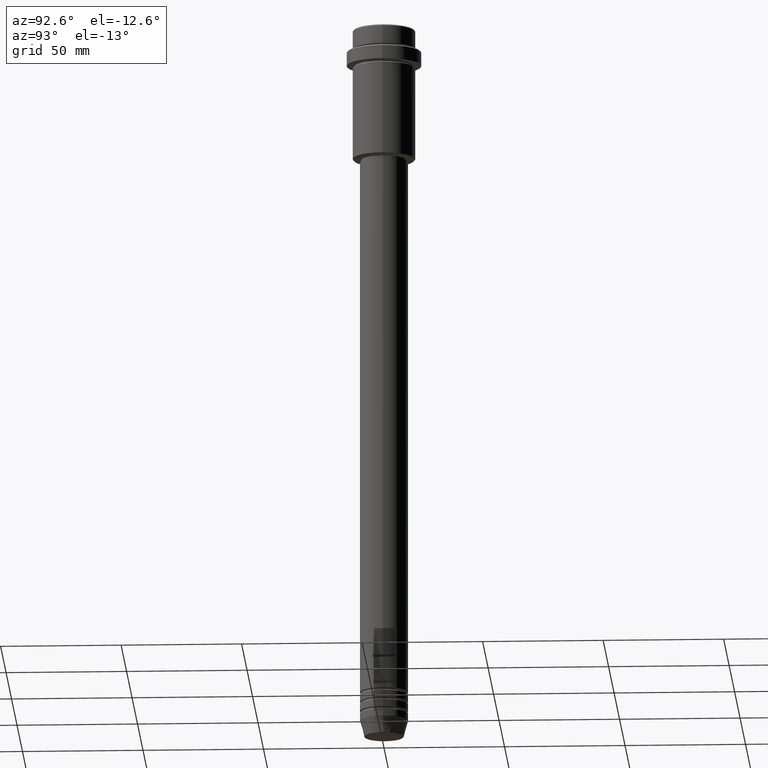
[diagram: clean part render]
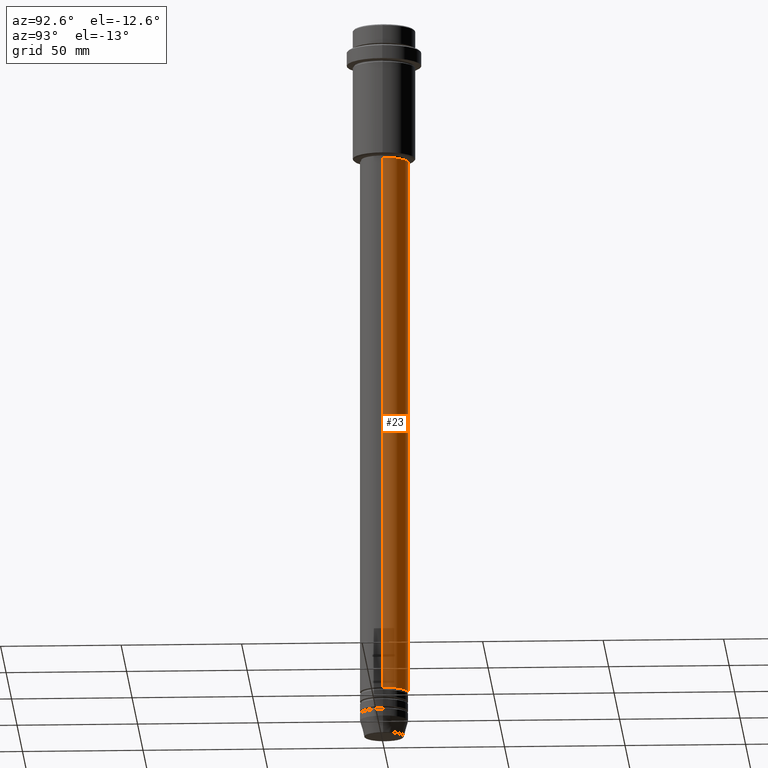
[diagram: same view with one face highlighted and labeled with its STEP entity id]
A machine part, auxiliary view. The second image highlights one B-rep face of the part: STEP entity #23.
In plain terms, the highlighted cylindrical surface (edge-blend (fillet) strip) has radius 10 mm, axis along (-0, -0, 1).
Its self-contained STEP definition (entity closure, byte-faithful):
#23 = ADVANCED_FACE ( 'NONE', ( #341 ), #254, .T. ) ;
#24 = DIRECTION ( 'NONE',  ( -0.000000000000000000, -0.000000000000000000, 1.000000000000000000 ) ) ;
#39 = ORIENTED_EDGE ( 'NONE', *, *, #1325, .T. ) ;
#126 = CARTESIAN_POINT ( 'NONE',  ( 0.000000000000000000, 0.000000000000000000, -280.9999999999998863 ) ) ;
#146 = DIRECTION ( 'NONE',  ( 1.000000000000000000, 0.000000000000000000, 0.000000000000000000 ) ) ;
#148 = VERTEX_POINT ( 'NONE', #288 ) ;
#155 = DIRECTION ( 'NONE',  ( 1.000000000000000000, 0.000000000000000000, 0.000000000000000000 ) ) ;
#190 = VERTEX_POINT ( 'NONE', #754 ) ;
#254 = CYLINDRICAL_SURFACE ( 'NONE', #987, 10.00000000000000178 ) ;
#277 = ORIENTED_EDGE ( 'NONE', *, *, #464, .F. ) ;
#288 = CARTESIAN_POINT ( 'NONE',  ( -10.00000000000000178, 1.224646799147353454E-15, -55.99999999999990763 ) ) ;
#341 = FACE_OUTER_BOUND ( 'NONE', #546, .T. ) ;
#344 = VECTOR ( 'NONE', #1040, 1000.000000000000000 ) ;
#379 = CARTESIAN_POINT ( 'NONE',  ( 0.000000000000000000, 0.000000000000000000, -55.99999999999990763 ) ) ;
#403 = VERTEX_POINT ( 'NONE', #1019 ) ;
#434 = CARTESIAN_POINT ( 'NONE',  ( 10.00000000000000000, 0.000000000000000000, -280.9999999999998863 ) ) ;
#464 = EDGE_CURVE ( 'NONE', #403, #148, #603, .T. ) ;
#546 = EDGE_LOOP ( 'NONE', ( #39, #1181, #277, #983 ) ) ;
#553 = VECTOR ( 'NONE', #24, 1000.000000000000000 ) ;
#600 = LINE ( 'NONE', #1142, #344 ) ;
#603 = CIRCLE ( 'NONE', #641, 10.00000000000000178 ) ;
#641 = AXIS2_PLACEMENT_3D ( 'NONE', #379, #1024, #155 ) ;
#688 = CARTESIAN_POINT ( 'NONE',  ( 0.000000000000000000, 0.000000000000000000, 0.000000000000000000 ) ) ;
#689 = DIRECTION ( 'NONE',  ( 1.000000000000000000, 0.000000000000000000, 0.000000000000000000 ) ) ;
#754 = CARTESIAN_POINT ( 'NONE',  ( -10.00000000000000000, 1.224646799147353256E-15, -280.9999999999998863 ) ) ;
#793 = VERTEX_POINT ( 'NONE', #434 ) ;
#819 = EDGE_CURVE ( 'NONE', #190, #148, #881, .T. ) ;
#881 = LINE ( 'NONE', #887, #553 ) ;
#887 = CARTESIAN_POINT ( 'NONE',  ( -10.00000000000000178, 1.224646799147353454E-15, 0.000000000000000000 ) ) ;
#890 = DIRECTION ( 'NONE',  ( -0.000000000000000000, -0.000000000000000000, 1.000000000000000000 ) ) ;
#943 = AXIS2_PLACEMENT_3D ( 'NONE', #126, #890, #689 ) ;
#983 = ORIENTED_EDGE ( 'NONE', *, *, #1008, .F. ) ;
#987 = AXIS2_PLACEMENT_3D ( 'NONE', #688, #1127, #146 ) ;
#1008 = EDGE_CURVE ( 'NONE', #793, #403, #600, .T. ) ;
#1019 = CARTESIAN_POINT ( 'NONE',  ( 10.00000000000000178, 0.000000000000000000, -55.99999999999990763 ) ) ;
#1024 = DIRECTION ( 'NONE',  ( -0.000000000000000000, -0.000000000000000000, 1.000000000000000000 ) ) ;
#1040 = DIRECTION ( 'NONE',  ( -0.000000000000000000, -0.000000000000000000, 1.000000000000000000 ) ) ;
#1127 = DIRECTION ( 'NONE',  ( -0.000000000000000000, -0.000000000000000000, 1.000000000000000000 ) ) ;
#1142 = CARTESIAN_POINT ( 'NONE',  ( 10.00000000000000178, 0.000000000000000000, 0.000000000000000000 ) ) ;
#1181 = ORIENTED_EDGE ( 'NONE', *, *, #819, .T. ) ;
#1325 = EDGE_CURVE ( 'NONE', #793, #190, #1379, .T. ) ;
#1379 = CIRCLE ( 'NONE', #943, 10.00000000000000000 ) ;